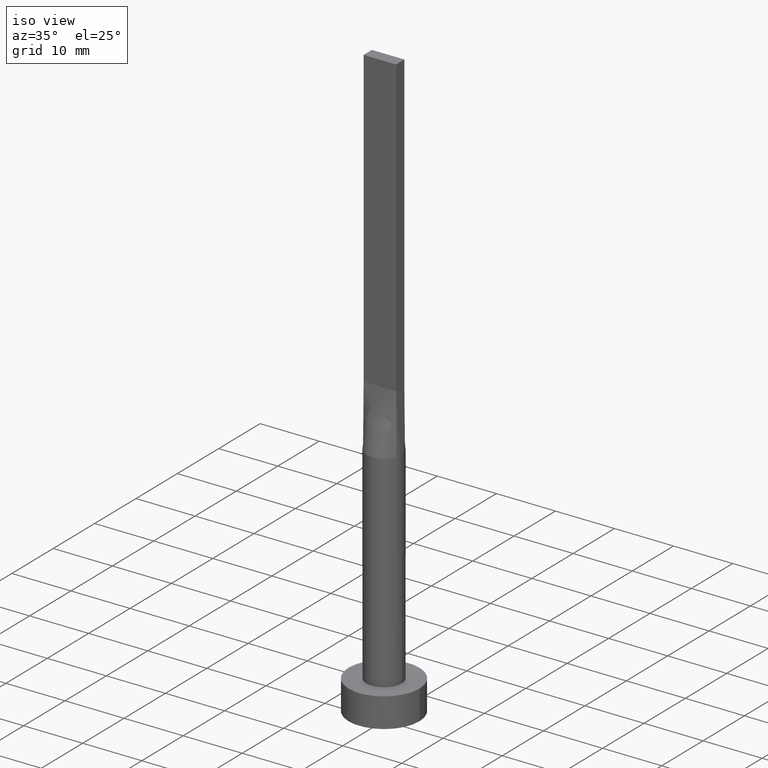
[diagram: clean part render]
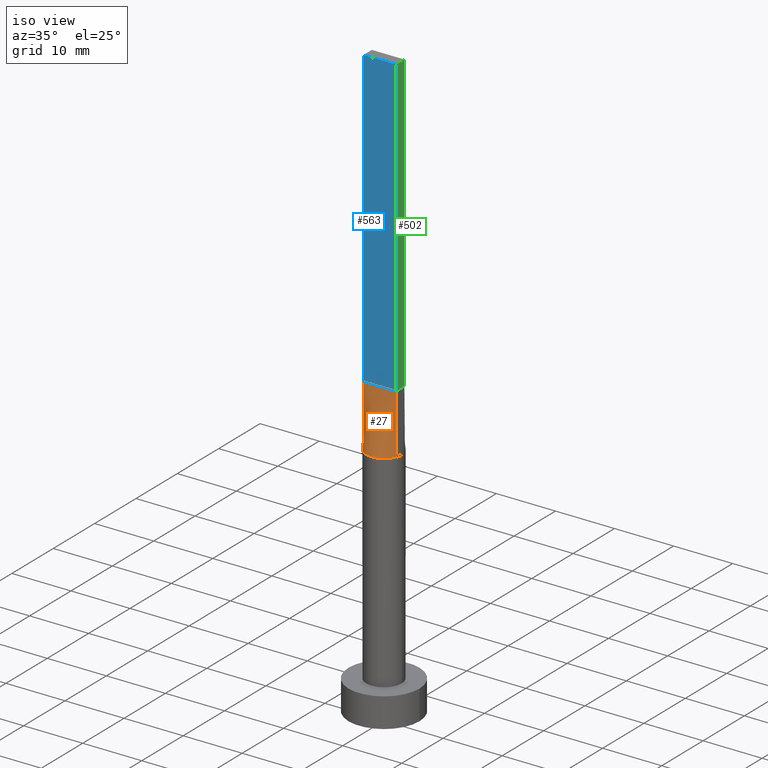
[diagram: same view with three faces highlighted in distinct colors, each labeled with its STEP entity id]
A machine part, iso view with three faces highlighted in distinct colors.
Their STEP definitions:

[orange] entity #27 — the highlighted face is a freeform B-spline surface patch.
#27 = ADVANCED_FACE ( 'NONE', ( #138 ), #562, .T. ) ;
#28 = LINE ( 'NONE', #423, #572 ) ;
#29 = CARTESIAN_POINT ( 'NONE',  ( 0.2291666666666665464, -0.9999999999999995559, 50.00000000000000711 ) ) ;
#32 = CARTESIAN_POINT ( 'NONE',  ( 1.833333333333333481, -0.9999999999999995559, 50.00000000000000000 ) ) ;
#35 = CARTESIAN_POINT ( 'NONE',  ( -2.115507543051069472, -2.149870311632975373, 40.00000000000000000 ) ) ;
#43 = CARTESIAN_POINT ( 'NONE',  ( -0.4583333333333333703, -0.9999999999999995559, 50.00000000000000711 ) ) ;
#53 = DIRECTION ( 'NONE',  ( 0.000000000000000000, 0.000000000000000000, 1.000000000000000000 ) ) ;
#69 = CARTESIAN_POINT ( 'NONE',  ( -2.625980160873452540, -1.476334031700885507, 40.00000000000000711 ) ) ;
#70 = EDGE_CURVE ( 'NONE', #447, #248, #175, .T. ) ;
#72 = CARTESIAN_POINT ( 'NONE',  ( 0.3502136323054372835, -3.000000000000000444, 39.99999999999998579 ) ) ;
#75 = CARTESIAN_POINT ( 'NONE',  ( -1.833333333333333037, -0.9999999999999995559, 50.00000000000000000 ) ) ;
#90 = CARTESIAN_POINT ( 'NONE',  ( -2.750000000000000000, -0.9999999999999993339, 50.00000000000000000 ) ) ;
#92 = CARTESIAN_POINT ( 'NONE',  ( 0.000000000000000000, 0.000000000000000000, 40.00000000000000000 ) ) ;
#97 = DIRECTION ( 'NONE',  ( 1.000000000000000000, 0.000000000000000000, 0.000000000000000000 ) ) ;
#102 = DIRECTION ( 'NONE',  ( -0.006937837988376364777, 0.002522850177591326286, 0.9999727504442450510 ) ) ;
#113 = AXIS2_PLACEMENT_3D ( 'NONE', #92, #53, #97 ) ;
#127 = CARTESIAN_POINT ( 'NONE',  ( 1.338960936578149630, -2.706038443291638007, 40.00000000000000711 ) ) ;
#138 = FACE_OUTER_BOUND ( 'NONE', #507, .T. ) ;
#147 = ORIENTED_EDGE ( 'NONE', *, *, #569, .T. ) ;
#167 = CARTESIAN_POINT ( 'NONE',  ( 0.6998073349918603192, -2.936959335800557902, 40.00000000000000711 ) ) ;
#175 = CIRCLE ( 'NONE', #113, 3.000000000000000444 ) ;
#184 = CARTESIAN_POINT ( 'NONE',  ( 2.291666666666666519, -0.9999999999999995559, 50.00000000000000000 ) ) ;
#187 = VECTOR ( 'NONE', #491, 1000.000000000000227 ) ;
#196 = EDGE_CURVE ( 'NONE', #552, #289, #28, .T. ) ;
#214 = CARTESIAN_POINT ( 'NONE',  ( -2.739088299662391979, -1.246032108968140983, 39.99999999999999289 ) ) ;
#219 = CARTESIAN_POINT ( 'NONE',  ( -0.6998073349918614294, -2.936959335800558346, 40.00000000000000711 ) ) ;
#221 = CARTESIAN_POINT ( 'NONE',  ( -0.3502136323054380052, -3.000000000000000888, 40.00000000000000000 ) ) ;
#226 = CARTESIAN_POINT ( 'NONE',  ( 2.520833333333333037, -0.9999999999999995559, 50.00000000000000000 ) ) ;
#248 = VERTEX_POINT ( 'NONE', #331 ) ;
#251 = CARTESIAN_POINT ( 'NONE',  ( -1.338960936578150518, -2.706038443291638007, 40.00000000000001421 ) ) ;
#254 = CARTESIAN_POINT ( 'NONE',  ( 1.627925520694712080, -2.539128397820341831, 39.99999999999999289 ) ) ;
#256 = CARTESIAN_POINT ( 'NONE',  ( -1.145833333333333259, -0.9999999999999995559, 50.00000000000000711 ) ) ;
#267 = CARTESIAN_POINT ( 'NONE',  ( -2.314486317179578645, -1.928337902455806496, 40.00000000000000000 ) ) ;
#268 = CARTESIAN_POINT ( 'NONE',  ( -2.784690135232656072, -1.012614594630055764, 45.00000000000000000 ) ) ;
#278 = CARTESIAN_POINT ( 'NONE',  ( 2.784690135232656072, -1.012614594630056208, 45.00000000000000000 ) ) ;
#289 = VERTEX_POINT ( 'NONE', #547 ) ;
#294 = CARTESIAN_POINT ( 'NONE',  ( 2.819380270465311700, -1.025229189260112417, 40.00000000000000000 ) ) ;
#298 = VECTOR ( 'NONE', #102, 1000.000000000000227 ) ;
#299 = CARTESIAN_POINT ( 'NONE',  ( 2.115507543051068140, -2.149870311632976705, 39.99999999999998579 ) ) ;
#305 = CARTESIAN_POINT ( 'NONE',  ( 0.4583333333333332593, -0.9999999999999995559, 50.00000000000000000 ) ) ;
#317 = ORIENTED_EDGE ( 'NONE', *, *, #196, .F. ) ;
#331 = CARTESIAN_POINT ( 'NONE',  ( 2.819430526142641558, -1.025247683279450817, 40.00000000000000000 ) ) ;
#333 = CARTESIAN_POINT ( 'NONE',  ( 2.625980160873452984, -1.476334031700886618, 40.00000000000000000 ) ) ;
#339 = CARTESIAN_POINT ( 'NONE',  ( -2.520833333333333037, -0.9999999999999993339, 50.00000000000000000 ) ) ;
#345 = CARTESIAN_POINT ( 'NONE',  ( -1.604166666666666519, -0.9999999999999995559, 50.00000000000000000 ) ) ;
#377 = CARTESIAN_POINT ( 'NONE',  ( 2.314486317179579533, -1.928337902455807606, 40.00000000000000000 ) ) ;
#384 = CARTESIAN_POINT ( 'NONE',  ( -0.2291666666666667684, -0.9999999999999995559, 50.00000000000000711 ) ) ;
#386 = CARTESIAN_POINT ( 'NONE',  ( -2.819413526938078007, -1.025241406939941369, 40.00000000000000000 ) ) ;
#415 = ORIENTED_EDGE ( 'NONE', *, *, #543, .T. ) ;
#421 = DIRECTION ( 'NONE',  ( 1.000000000000000000, -7.885106708985487801E-17, 0.000000000000000000 ) ) ;
#423 = CARTESIAN_POINT ( 'NONE',  ( -2.750000000000000000, -0.9999999999999993339, 50.00000000000000000 ) ) ;
#425 = CARTESIAN_POINT ( 'NONE',  ( 1.604166666666666741, -0.9999999999999995559, 50.00000000000000000 ) ) ;
#439 = CARTESIAN_POINT ( 'NONE',  ( 1.145833333333333259, -0.9999999999999995559, 50.00000000000000000 ) ) ;
#447 = VERTEX_POINT ( 'NONE', #386 ) ;
#452 = LINE ( 'NONE', #268, #187 ) ;
#477 = CARTESIAN_POINT ( 'NONE',  ( 2.739088299662391979, -1.246032108968142982, 40.00000000000000000 ) ) ;
#484 = CARTESIAN_POINT ( 'NONE',  ( 0.9166666666666665186, -0.9999999999999995559, 50.00000000000000000 ) ) ;
#491 = DIRECTION ( 'NONE',  ( -0.006937837988376364777, -0.002522850177591326286, -0.9999727504442450510 ) ) ;
#507 = EDGE_LOOP ( 'NONE', ( #510, #415, #317, #147 ) ) ;
#510 = ORIENTED_EDGE ( 'NONE', *, *, #70, .T. ) ;
#520 = CARTESIAN_POINT ( 'NONE',  ( -0.9166666666666666297, -0.9999999999999995559, 50.00000000000000711 ) ) ;
#526 = CARTESIAN_POINT ( 'NONE',  ( -2.291666666666666519, -0.9999999999999995559, 50.00000000000000000 ) ) ;
#528 = CARTESIAN_POINT ( 'NONE',  ( 2.750000000000000000, -0.9999999999999997780, 50.00000000000000000 ) ) ;
#538 = LINE ( 'NONE', #278, #298 ) ;
#543 = EDGE_CURVE ( 'NONE', #248, #289, #538, .T. ) ;
#547 = CARTESIAN_POINT ( 'NONE',  ( 2.750000000000000000, -0.9999999999999997780, 50.00000000000000000 ) ) ;
#552 = VERTEX_POINT ( 'NONE', #579 ) ;
#562 = B_SPLINE_SURFACE_WITH_KNOTS ( 'NONE', 3, 1, ( 
 ( #576, #90 ),
 ( #214, #339 ),
 ( #69, #526 ),
 ( #267, #75 ),
 ( #35, #345 ),
 ( #566, #256 ),
 ( #251, #520 ),
 ( #219, #43 ),
 ( #221, #384 ),
 ( #72, #29 ),
 ( #167, #305 ),
 ( #127, #484 ),
 ( #254, #439 ),
 ( #299, #425 ),
 ( #377, #32 ),
 ( #333, #184 ),
 ( #477, #226 ),
 ( #294, #528 ) ),
 .UNSPECIFIED., .F., .F., .F.,
 ( 4, 2, 2, 2, 2, 2, 2, 2, 4 ),
 ( 2, 2 ),
 ( 0.000000000000000000, 0.1250000000000000000, 0.2500000000000000000, 0.3750000000000000000, 0.5000000000000000000, 0.6250000000000000000, 0.7500000000000000000, 0.8750000000000000000, 1.000000000000000000 ),
 ( 0.000000000000000000, 1.000000000000000000 ),
 .UNSPECIFIED. ) ;
#566 = CARTESIAN_POINT ( 'NONE',  ( -1.627925520694712525, -2.539128397820340055, 39.99999999999999289 ) ) ;
#569 = EDGE_CURVE ( 'NONE', #552, #447, #452, .T. ) ;
#572 = VECTOR ( 'NONE', #421, 1000.000000000000000 ) ;
#576 = CARTESIAN_POINT ( 'NONE',  ( -2.819380270465311700, -1.025229189260111973, 40.00000000000000000 ) ) ;
#579 = CARTESIAN_POINT ( 'NONE',  ( -2.750000000000000000, -0.9999999999999993339, 50.00000000000000000 ) ) ;

[blue] entity #563 — the highlighted planar face has unit normal (0, 1, -0).
#2 = DIRECTION ( 'NONE',  ( -1.000000000000000000, 7.885106708985487801E-17, 0.000000000000000000 ) ) ;
#23 = VECTOR ( 'NONE', #285, 1000.000000000000000 ) ;
#25 = LINE ( 'NONE', #373, #395 ) ;
#28 = LINE ( 'NONE', #423, #572 ) ;
#86 = CARTESIAN_POINT ( 'NONE',  ( -2.750000000000000000, -0.9999999999999993339, 100.0000000000000000 ) ) ;
#91 = FACE_OUTER_BOUND ( 'NONE', #481, .T. ) ;
#111 = ORIENTED_EDGE ( 'NONE', *, *, #336, .T. ) ;
#119 = ORIENTED_EDGE ( 'NONE', *, *, #196, .T. ) ;
#196 = EDGE_CURVE ( 'NONE', #552, #289, #28, .T. ) ;
#235 = PLANE ( 'NONE',  #430 ) ;
#249 = CARTESIAN_POINT ( 'NONE',  ( -2.750000000000000000, -0.9999999999999993339, 100.0000000000000000 ) ) ;
#266 = DIRECTION ( 'NONE',  ( 1.000000000000000000, -7.885106708985487801E-17, 0.000000000000000000 ) ) ;
#275 = CARTESIAN_POINT ( 'NONE',  ( -2.750000000000000000, -0.9999999999999993339, 100.0000000000000000 ) ) ;
#280 = ORIENTED_EDGE ( 'NONE', *, *, #351, .F. ) ;
#285 = DIRECTION ( 'NONE',  ( -0.000000000000000000, -0.000000000000000000, -1.000000000000000000 ) ) ;
#289 = VERTEX_POINT ( 'NONE', #547 ) ;
#313 = VERTEX_POINT ( 'NONE', #381 ) ;
#329 = LINE ( 'NONE', #249, #23 ) ;
#336 = EDGE_CURVE ( 'NONE', #366, #552, #329, .T. ) ;
#338 = EDGE_CURVE ( 'NONE', #313, #289, #25, .T. ) ;
#344 = LINE ( 'NONE', #438, #545 ) ;
#351 = EDGE_CURVE ( 'NONE', #366, #313, #344, .T. ) ;
#352 = DIRECTION ( 'NONE',  ( 7.885106708985487801E-17, 1.000000000000000000, -0.000000000000000000 ) ) ;
#366 = VERTEX_POINT ( 'NONE', #86 ) ;
#373 = CARTESIAN_POINT ( 'NONE',  ( 2.750000000000000000, -0.9999999999999997780, 100.0000000000000000 ) ) ;
#381 = CARTESIAN_POINT ( 'NONE',  ( 2.750000000000000000, -0.9999999999999997780, 100.0000000000000000 ) ) ;
#395 = VECTOR ( 'NONE', #551, 1000.000000000000000 ) ;
#421 = DIRECTION ( 'NONE',  ( 1.000000000000000000, -7.885106708985487801E-17, 0.000000000000000000 ) ) ;
#423 = CARTESIAN_POINT ( 'NONE',  ( -2.750000000000000000, -0.9999999999999993339, 50.00000000000000000 ) ) ;
#430 = AXIS2_PLACEMENT_3D ( 'NONE', #275, #352, #2 ) ;
#438 = CARTESIAN_POINT ( 'NONE',  ( -2.750000000000000000, -0.9999999999999993339, 100.0000000000000000 ) ) ;
#481 = EDGE_LOOP ( 'NONE', ( #119, #544, #280, #111 ) ) ;
#544 = ORIENTED_EDGE ( 'NONE', *, *, #338, .F. ) ;
#545 = VECTOR ( 'NONE', #266, 1000.000000000000000 ) ;
#547 = CARTESIAN_POINT ( 'NONE',  ( 2.750000000000000000, -0.9999999999999997780, 50.00000000000000000 ) ) ;
#551 = DIRECTION ( 'NONE',  ( -0.000000000000000000, -0.000000000000000000, -1.000000000000000000 ) ) ;
#552 = VERTEX_POINT ( 'NONE', #579 ) ;
#563 = ADVANCED_FACE ( 'NONE', ( #91 ), #235, .F. ) ;
#572 = VECTOR ( 'NONE', #421, 1000.000000000000000 ) ;
#579 = CARTESIAN_POINT ( 'NONE',  ( -2.750000000000000000, -0.9999999999999993339, 50.00000000000000000 ) ) ;

[green] entity #502 — the highlighted planar face has unit normal (-1, -0, 0).
#1 = VECTOR ( 'NONE', #337, 1000.000000000000000 ) ;
#4 = FACE_OUTER_BOUND ( 'NONE', #371, .T. ) ;
#5 = CARTESIAN_POINT ( 'NONE',  ( 2.749999999999999556, 1.000000000000000000, 50.00000000000000000 ) ) ;
#14 = ORIENTED_EDGE ( 'NONE', *, *, #80, .T. ) ;
#24 = ORIENTED_EDGE ( 'NONE', *, *, #338, .T. ) ;
#25 = LINE ( 'NONE', #373, #395 ) ;
#80 = EDGE_CURVE ( 'NONE', #289, #164, #442, .T. ) ;
#139 = CARTESIAN_POINT ( 'NONE',  ( 2.750000000000000000, -0.9999999999999997780, 100.0000000000000000 ) ) ;
#149 = PLANE ( 'NONE',  #379 ) ;
#164 = VERTEX_POINT ( 'NONE', #334 ) ;
#179 = EDGE_CURVE ( 'NONE', #313, #541, #511, .T. ) ;
#194 = VECTOR ( 'NONE', #492, 1000.000000000000000 ) ;
#209 = CARTESIAN_POINT ( 'NONE',  ( 2.750000000000000000, -0.9999999999999997780, 100.0000000000000000 ) ) ;
#227 = CARTESIAN_POINT ( 'NONE',  ( 2.749999999999999556, 1.000000000000000000, 100.0000000000000000 ) ) ;
#289 = VERTEX_POINT ( 'NONE', #547 ) ;
#309 = DIRECTION ( 'NONE',  ( 2.168404344971008868E-16, -1.000000000000000000, 0.000000000000000000 ) ) ;
#313 = VERTEX_POINT ( 'NONE', #381 ) ;
#325 = DIRECTION ( 'NONE',  ( -2.168404344971008868E-16, 1.000000000000000000, 0.000000000000000000 ) ) ;
#334 = CARTESIAN_POINT ( 'NONE',  ( 2.749999999999999556, 1.000000000000000000, 50.00000000000000000 ) ) ;
#337 = DIRECTION ( 'NONE',  ( -0.000000000000000000, -0.000000000000000000, -1.000000000000000000 ) ) ;
#338 = EDGE_CURVE ( 'NONE', #313, #289, #25, .T. ) ;
#360 = CARTESIAN_POINT ( 'NONE',  ( 2.749999999999999556, 1.000000000000000000, 100.0000000000000000 ) ) ;
#371 = EDGE_LOOP ( 'NONE', ( #14, #419, #464, #24 ) ) ;
#373 = CARTESIAN_POINT ( 'NONE',  ( 2.750000000000000000, -0.9999999999999997780, 100.0000000000000000 ) ) ;
#379 = AXIS2_PLACEMENT_3D ( 'NONE', #139, #535, #309 ) ;
#381 = CARTESIAN_POINT ( 'NONE',  ( 2.750000000000000000, -0.9999999999999997780, 100.0000000000000000 ) ) ;
#383 = EDGE_CURVE ( 'NONE', #541, #164, #436, .T. ) ;
#395 = VECTOR ( 'NONE', #551, 1000.000000000000000 ) ;
#419 = ORIENTED_EDGE ( 'NONE', *, *, #383, .F. ) ;
#428 = VECTOR ( 'NONE', #325, 1000.000000000000000 ) ;
#436 = LINE ( 'NONE', #227, #1 ) ;
#442 = LINE ( 'NONE', #5, #194 ) ;
#464 = ORIENTED_EDGE ( 'NONE', *, *, #179, .F. ) ;
#492 = DIRECTION ( 'NONE',  ( -2.168404344971008868E-16, 1.000000000000000000, -0.000000000000000000 ) ) ;
#502 = ADVANCED_FACE ( 'NONE', ( #4 ), #149, .F. ) ;
#511 = LINE ( 'NONE', #209, #428 ) ;
#535 = DIRECTION ( 'NONE',  ( -1.000000000000000000, -2.168404344971008868E-16, 0.000000000000000000 ) ) ;
#541 = VERTEX_POINT ( 'NONE', #360 ) ;
#547 = CARTESIAN_POINT ( 'NONE',  ( 2.750000000000000000, -0.9999999999999997780, 50.00000000000000000 ) ) ;
#551 = DIRECTION ( 'NONE',  ( -0.000000000000000000, -0.000000000000000000, -1.000000000000000000 ) ) ;